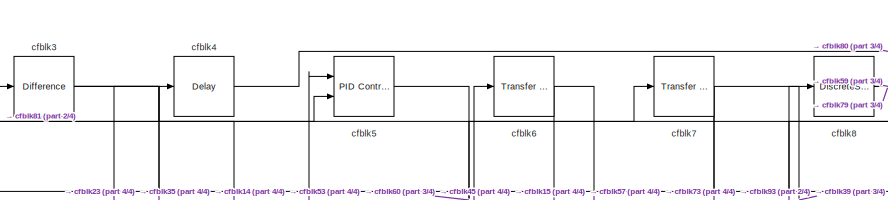
[diagram: root canvas - part 1/4, top center region]
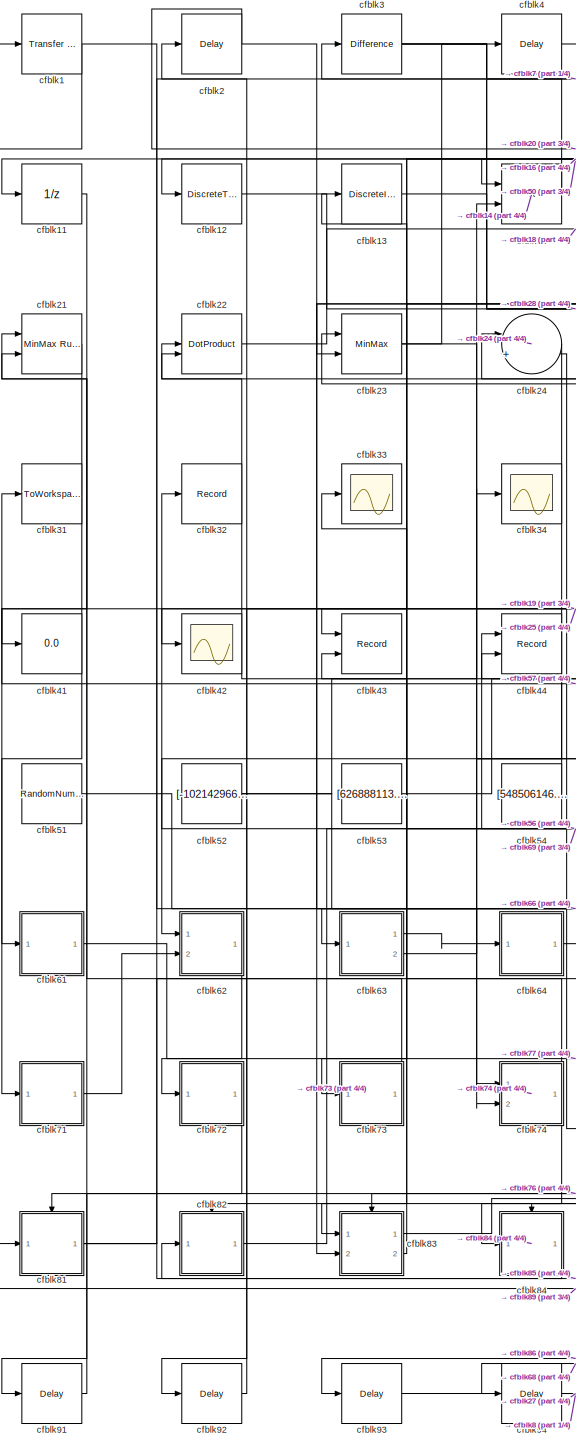
[diagram: root canvas - part 2/4, left side, full height]
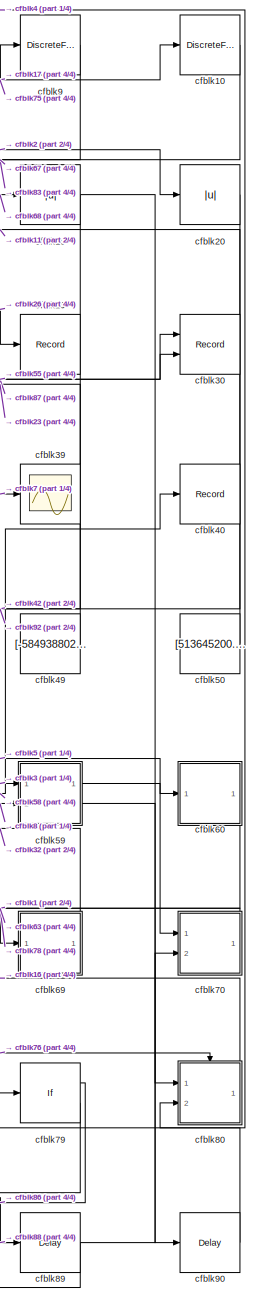
[diagram: root canvas - part 3/4, right side, full height]
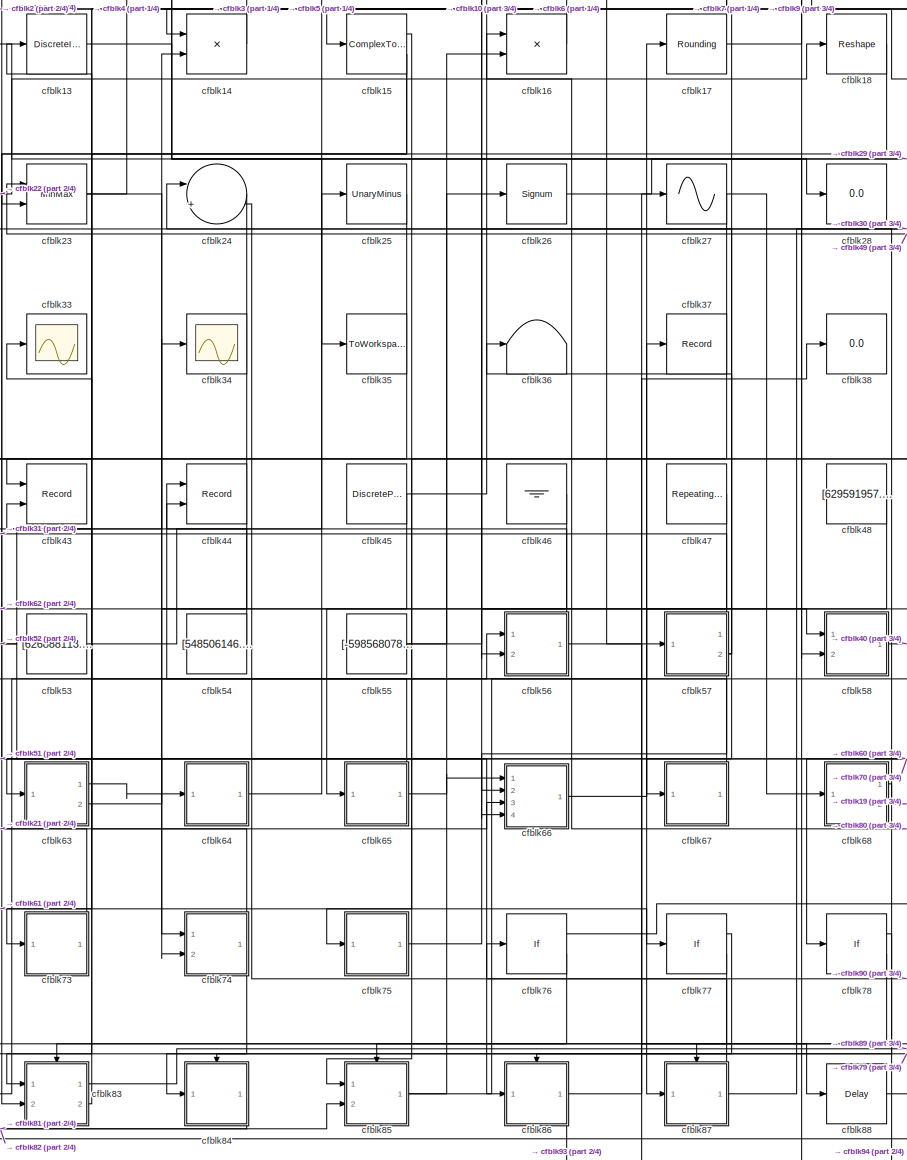
[diagram: root canvas - part 4/4, center side, full height]
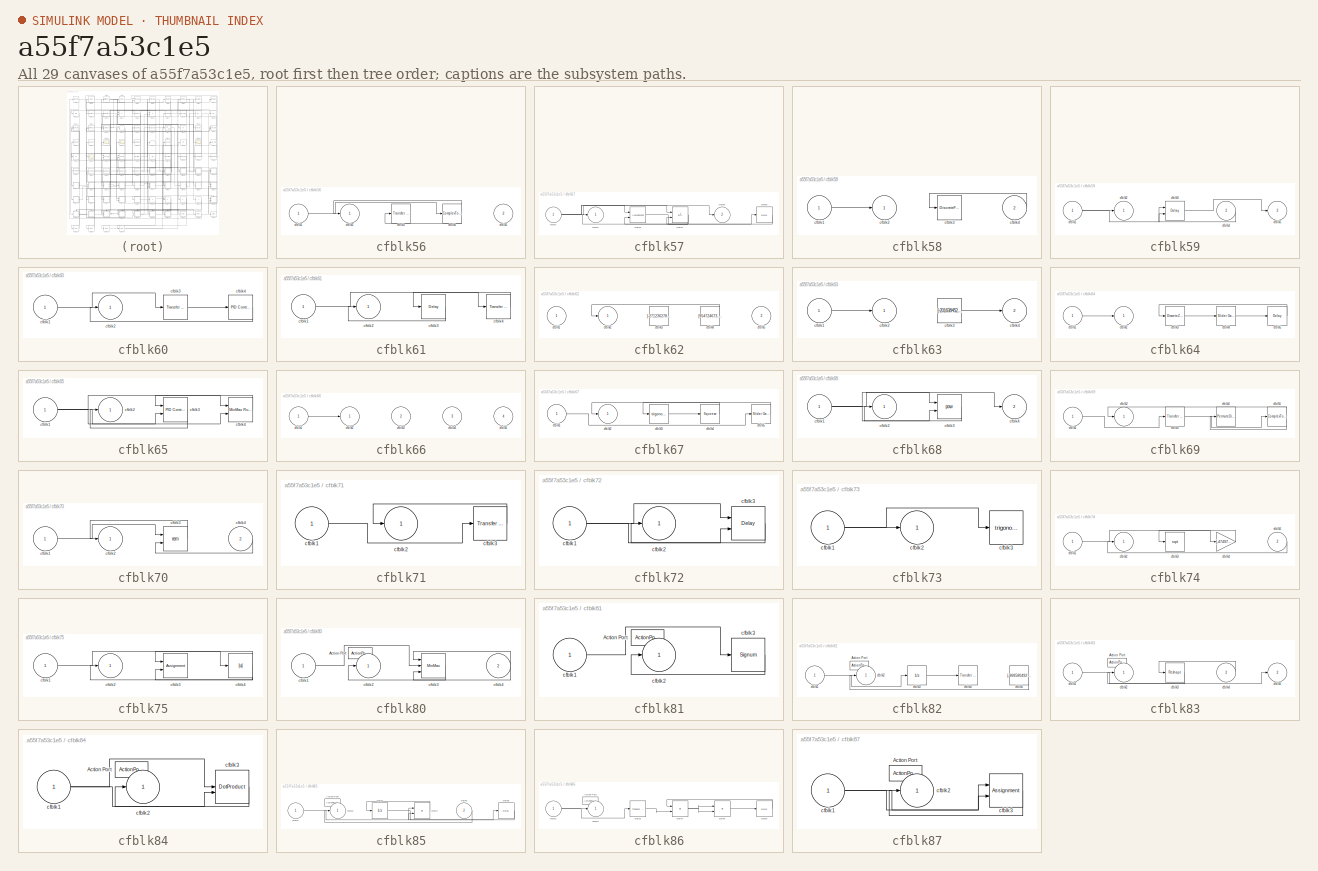
[diagram: thumbnail index - all 29 canvases of the model, root first then tree order]
MODEL slx_a55f7a53c1e5
KIND model
CONFIG AbsTol = auto
CONFIG EnableMultiTasking = off
CONFIG FixedStep = auto
CONFIG MaxStep = auto
CONFIG MinStep = auto
CONFIG RelTol = 1e-3
CONFIG SampleTimeConstraint = Unconstrained
CONFIG SolverName = VariableStepAuto
CONFIG StartTime = 0.0
CONFIG StopTime = 10.0
BLOCK [Reference] cfblk1  REF=simulink/Discrete/Transfer Fcn
Real Zero
  Ports = [1, 1]
  SourceBlock = simulink/Discrete/Transfer Fcn\nReal Zero
  SourceProductBaseCode = SL
  SourceType = Transfer Fcn Real Zero
BLOCK [DiscreteFir] cfblk10
  InputPortMap = u0
  OutputPortMap = o0
  Ports = [1, 1]
  SampleTime = 1
BLOCK [UnitDelay] cfblk11
  HasFrameUpgradeWarning = on
BLOCK [DiscreteTransferFcn] cfblk12
  InputPortMap = u0
  Ports = [1, 1]
  SampleTime = 1
BLOCK [DiscreteIntegrator] cfblk13
  ICPrevOutput = DiscIntNeverNeededParam
  ICPrevScaledInput = DiscIntNeverNeededParam
  InitialConditionSetting = Auto
  Ports = [1, 1]
BLOCK [Product] cfblk14
  Inputs = **
  Ports = [2, 1]
BLOCK [ComplexToMagnitudeAngle] cfblk15
  Ports = [1, 2]
BLOCK [Product] cfblk16
  Ports = [2, 1]
BLOCK [Rounding] cfblk17
BLOCK [Reshape] cfblk18
  Ports = [1, 1]
BLOCK [Abs] cfblk19
  SaturateOnIntegerOverflow = off
BLOCK [Delay] cfblk2
  InputPortMap = u0
  Ports = [1, 1]
  SampleTime = 1
BLOCK [Abs] cfblk20
  SaturateOnIntegerOverflow = off
BLOCK [Reference] cfblk21  REF=simulink/Math
Operations/MinMax
Running
Resettable
  Ports = [2, 1]
  SourceBlock = simulink/Math\nOperations/MinMax\nRunning\nResettable
  SourceProductBaseCode = SL
  SourceType = MinMax Running Resettable
BLOCK [DotProduct] cfblk22
  OutDataTypeStr = Inherit: Inherit via internal rule
BLOCK [MinMax] cfblk23
  Inputs = 2
  Ports = [2, 1]
BLOCK [Sum] cfblk24
  Inputs = |++
  Ports = [2, 1]
BLOCK [UnaryMinus] cfblk25
BLOCK [Signum] cfblk26
BLOCK [Sin] cfblk27
  Ports = [1, 1]
  SampleTime = 0
  TimeSource = Use external signal
BLOCK [Display] cfblk28
  Decimation = 1
  Ports = [1]
BLOCK [Record] cfblk29
  FileSettingsInternal = {"entries":[{"content":{"excelSettings":{"content":{},"type":"Streamout.ExcelSettings"}},"type":"Streamout.FileSettingStorage","uuid":"2b0b6815-d365-4954-8dd6-cb2e8cf74314"}],"packageUris":["http://schema.mathworks.com/mf0/streamout_blocks/R2020a"],"version":"1.0"}
  Ports = [1]
  SignalsInternal = {"entries":[{"content":{"signals":[{"content":{"blockPath":["sampleModel291/cfblk29"],"channel":[],"dimensions":[1],"domain":"sampleModel291/cfblk29","lineColor":"#edb120","plots":[1],"port":1,"sid":[""],"signalID":12456,"signalName":"cfblk26"},"type":"RecordBlkView.Signal","uuid":"788e08af-b9e6-414c-a560-80c9ba5d0819"}]},"type":"RecordBlkView.InputSignals","uuid":"3e41c427-b0fd-42bd-a14a-d0577fb3...<+98ch>
  VisualizationBindings = {"sparklinesplugin":{"info":[{"bindingParametersList":[],"subplotID":1}]}}
BLOCK [Reference] cfblk3  REF=simulink/Discrete/Difference
  Ports = [1, 1]
  SourceBlock = simulink/Discrete/Difference
  SourceProductBaseCode = SL
  SourceType = Difference
BLOCK [Record] cfblk30
  CompatibilityTag = XY
  FileSettingsInternal = {"entries":[{"content":{"excelSettings":{"content":{},"type":"Streamout.ExcelSettings"}},"type":"Streamout.FileSettingStorage","uuid":"5635bea9-fca3-4bb6-9632-28c56633b247"}],"packageUris":["http://schema.mathworks.com/mf0/streamout_blocks/R2020a"],"version":"1.0"}
  Layout = [1 1]
  Ports = [2]
  SignalsInternal = {"entries":[{"content":{"signals":[{"content":{"blockPath":["sampleModel291/cfblk30"],"channel":[],"dimensions":[1],"domain":"sampleModel291/cfblk30","lineColor":"#a2142f","plots":[1],"port":1,"sid":[""],"signalID":12460,"signalName":"cfblk87"},"type":"RecordBlkView.Signal","uuid":"f6ba7891-6f58-490e-8c31-e94127d30383"},{"content":{"blockPath":["sampleModel291/cfblk30"],"channel":[],"dimensions":[...<+385ch>
  VisualizationBindings = {"xyplotplugin":{"info":[{"series":[{"bindingParametersList":[{"parameter":"X-Axis","signalID":12460,"signalName":"cfblk87"},{"parameter":"Y-Axis","signalID":12464,"signalName":"cfblk55"}],"seriesID":59280}],"subplotID":1}]}}
BLOCK [ToWorkspace] cfblk31
  FixptAsFi = on
  MaxDataPoints = inf
  Ports = [1]
  SampleTime = -1
  SaveFormat = Timeseries
  VariableName = mzxfqgi
BLOCK [Record] cfblk32
  FileSettingsInternal = {"entries":[{"content":{"excelSettings":{"content":{},"type":"Streamout.ExcelSettings"}},"type":"Streamout.FileSettingStorage","uuid":"60596596-cd23-4a4b-82c4-f6842354ffef"}],"packageUris":["http://schema.mathworks.com/mf0/streamout_blocks/R2020a"],"version":"1.0"}
  Ports = [1]
  SignalsInternal = {"entries":[{"content":{"signals":[{"content":{"blockPath":["sampleModel291/cfblk32"],"channel":[],"dimensions":[1],"domain":"sampleModel291/cfblk32","lineColor":"#4dbeee","plots":[1],"port":1,"sid":[""],"signalID":12468,"signalName":"cfblk69"},"type":"RecordBlkView.Signal","uuid":"650ce02e-d49f-4bcf-a60e-c9fb45e201ce"}]},"type":"RecordBlkView.InputSignals","uuid":"14e7f9b7-81f6-4e45-abef-a96e68b3...<+98ch>
  VisualizationBindings = {"sparklinesplugin":{"info":[{"bindingParametersList":[],"subplotID":1}]}}
BLOCK [Scope] cfblk33
  Floating = off
  NumInputPorts = 1
  Ports = [1]
BLOCK [Scope] cfblk34
  Floating = off
  NumInputPorts = 1
  Ports = [1]
BLOCK [ToWorkspace] cfblk35
  FixptAsFi = on
  MaxDataPoints = inf
  Ports = [1]
  SampleTime = -1
  SaveFormat = Timeseries
  VariableName = jkqbuzk
BLOCK [Terminator] cfblk36
BLOCK [Record] cfblk37
  FileSettingsInternal = {"entries":[{"content":{"excelSettings":{"content":{},"type":"Streamout.ExcelSettings"}},"type":"Streamout.FileSettingStorage","uuid":"270472a9-c15e-4337-86cb-d1870147eddd"}],"packageUris":["http://schema.mathworks.com/mf0/streamout_blocks/R2020a"],"version":"1.0"}
  Ports = [1]
  SignalsInternal = {"entries":[{"content":{"signals":[{"content":{"blockPath":["sampleModel291/cfblk37"],"channel":[],"dimensions":[1],"domain":"sampleModel291/cfblk37","lineColor":"#a2142f","plots":[1],"port":1,"sid":[""],"signalID":12472,"signalName":"cfblk66"},"type":"RecordBlkView.Signal","uuid":"8edad1df-9d97-4163-a96f-1843b3050bc3"}]},"type":"RecordBlkView.InputSignals","uuid":"f9057b6f-5984-4fda-84d3-36f6257a...<+98ch>
  VisualizationBindings = {"sparklinesplugin":{"info":[{"bindingParametersList":[],"subplotID":1}]}}
BLOCK [Display] cfblk38
  Decimation = 1
  Ports = [1]
BLOCK [Scope] cfblk39
  Floating = off
  NumInputPorts = 1
  Ports = [1]
BLOCK [Delay] cfblk4
  InputPortMap = u0
  Ports = [1, 1]
  SampleTime = 1
BLOCK [Record] cfblk40
  FileSettingsInternal = {"entries":[{"content":{"excelSettings":{"content":{},"type":"Streamout.ExcelSettings"}},"type":"Streamout.FileSettingStorage","uuid":"e3efeabe-4dc1-445f-9362-73d41ad3b046"}],"packageUris":["http://schema.mathworks.com/mf0/streamout_blocks/R2020a"],"version":"1.0"}
  Ports = [1]
  SignalsInternal = {"entries":[{"content":{"signals":[{"content":{"blockPath":["sampleModel291/cfblk40"],"channel":[],"dimensions":[1],"domain":"sampleModel291/cfblk40","lineColor":"#139fff","plots":[1],"port":1,"sid":[""],"signalID":12476,"signalName":"cfblk58"},"type":"RecordBlkView.Signal","uuid":"9cd40f56-8516-48ae-bdeb-aa173b96d6b5"}]},"type":"RecordBlkView.InputSignals","uuid":"edb59d7e-1718-46a5-85a3-ead406b7...<+98ch>
  VisualizationBindings = {"sparklinesplugin":{"info":[{"bindingParametersList":[],"subplotID":1}]}}
BLOCK [Display] cfblk41
  Decimation = 1
  Ports = [1]
BLOCK [Scope] cfblk42
  Floating = off
  NumInputPorts = 1
  Ports = [1]
BLOCK [Record] cfblk43
  CompatibilityTag = XY
  FileSettingsInternal = {"entries":[{"content":{"excelSettings":{"content":{},"type":"Streamout.ExcelSettings"}},"type":"Streamout.FileSettingStorage","uuid":"b99e1a35-57bf-4256-9eb8-cedfd4ac4627"}],"packageUris":["http://schema.mathworks.com/mf0/streamout_blocks/R2020a"],"version":"1.0"}
  Layout = [1 1]
  Ports = [2]
  SignalsInternal = {"entries":[{"content":{"signals":[{"content":{"blockPath":["sampleModel291/cfblk43"],"channel":[],"dimensions":[1],"domain":"sampleModel291/cfblk43","lineColor":"#a2142f","plots":[1],"port":1,"sid":[""],"signalID":12480,"signalName":"cfblk18"},"type":"RecordBlkView.Signal","uuid":"0c827c99-4b19-44af-998e-2d70f7f43936"},{"content":{"blockPath":["sampleModel291/cfblk43"],"channel":[],"dimensions":[...<+385ch>
  VisualizationBindings = {"xyplotplugin":{"info":[{"series":[{"bindingParametersList":[{"parameter":"X-Axis","signalID":12480,"signalName":"cfblk18"},{"parameter":"Y-Axis","signalID":12484,"signalName":"cfblk74"}],"seriesID":65002}],"subplotID":1}]}}
BLOCK [Record] cfblk44
  CompatibilityTag = XY
  FileSettingsInternal = {"entries":[{"content":{"excelSettings":{"content":{},"type":"Streamout.ExcelSettings"}},"type":"Streamout.FileSettingStorage","uuid":"dd3e8336-4d39-4557-9814-8ffac90a22b5"}],"packageUris":["http://schema.mathworks.com/mf0/streamout_blocks/R2020a"],"version":"1.0"}
  Layout = [1 1]
  Ports = [2]
  SignalsInternal = {"entries":[{"content":{"signals":[{"content":{"blockPath":["sampleModel291/cfblk44"],"channel":[],"dimensions":[1],"domain":"sampleModel291/cfblk44","lineColor":"#a2142f","plots":[1],"port":1,"sid":[""],"signalID":12488,"signalName":"cfblk54"},"type":"RecordBlkView.Signal","uuid":"f76f9e45-b488-469e-872e-e77342bc62c3"},{"content":{"blockPath":["sampleModel291/cfblk44"],"channel":[],"dimensions":[...<+385ch>
  VisualizationBindings = {"xyplotplugin":{"info":[{"series":[{"bindingParametersList":[{"parameter":"X-Axis","signalID":12488,"signalName":"cfblk54"},{"parameter":"Y-Axis","signalID":12492,"signalName":"cfblk67"}],"seriesID":5305}],"subplotID":1}]}}
BLOCK [DiscretePulseGenerator] cfblk45
  Amplitude = [-963080004.086267]
  Period = [93072844.377323]
  PhaseDelay = [6.000000]
  Ports = [0, 1]
  PulseType = Time based
  PulseWidth = 5
BLOCK [Ground] cfblk46
BLOCK [Reference] cfblk47  REF=simulink/Sources/Repeating
Sequence
  Ports = [0, 1]
  SourceBlock = simulink/Sources/Repeating\nSequence
  SourceProductBaseCode = SL
  SourceType = Repeating table
BLOCK [Constant] cfblk48
  SampleTime = 1
  Value = [629591957.612777]
BLOCK [Constant] cfblk49
  SampleTime = 1
  Value = [-584938802.515284]
BLOCK [Reference] cfblk5  REF=slpidlib/PID Controller (2DOF)
  Ports = [2, 1]
  SourceBlock = slpidlib/PID Controller (2DOF)
  SourceProductBaseCode = SL
  SourceType = PID 2dof
BLOCK [Constant] cfblk50
  SampleTime = 1
  Value = [513645200.187162]
BLOCK [RandomNumber] cfblk51
  Mean = [34863.969112]
  SampleTime = 0.1
  Seed = [176318592.000000]
  Variance = [79855.509002]
BLOCK [Constant] cfblk52
  SampleTime = 1
  Value = [-102142966.270296]
BLOCK [Constant] cfblk53
  SampleTime = 1
  Value = [626888113.337072]
BLOCK [Constant] cfblk54
  SampleTime = 1
  Value = [548506146.640336]
BLOCK [Constant] cfblk55
  SampleTime = 1
  Value = [-598568078.463545]
BLOCK [SubSystem] cfblk56
  Ports = [2, 1]
  RequestExecContextInheritance = off
BLOCK [Inport] cfblk56/cfblk1
BLOCK [Outport] cfblk56/cfblk2
BLOCK [Reference] cfblk56/cfblk3  REF=simulink/Discrete/Transfer Fcn
First Order
  Ports = [1, 1]
  SourceBlock = simulink/Discrete/Transfer Fcn\nFirst Order
  SourceProductBaseCode = SL
  SourceType = First Order Transfer Fcn
BLOCK [ComplexToMagnitudeAngle] cfblk56/cfblk4
  Ports = [1, 2]
BLOCK [Inport] cfblk56/cfblk5
  Port = 2
BLOCK [SubSystem] cfblk57
  Ports = [1, 2]
  RequestExecContextInheritance = off
BLOCK [Inport] cfblk57/cfblk1
BLOCK [Outport] cfblk57/cfblk2
BLOCK [Assignment] cfblk57/cfblk3
  DiagnosticForDimensions = Warning
  IndexOptions = Index vector (dialog)
  Indices = 1
  OutputSizes = 1
  Ports = [2, 1]
BLOCK [Sum] cfblk57/cfblk4
  IconShape = rectangular
  Inputs = -+
  Ports = [2, 1]
BLOCK [Outport] cfblk57/cfblk5
  Port = 2
BLOCK [Delay] cfblk57/cfblk6
  InputPortMap = u0
  Ports = [1, 1]
  SampleTime = 1
BLOCK [SubSystem] cfblk58
  Ports = [2, 1]
  RequestExecContextInheritance = off
BLOCK [Inport] cfblk58/cfblk1
BLOCK [Outport] cfblk58/cfblk2
BLOCK [DiscreteFir] cfblk58/cfblk3
  InputPortMap = u0
  OutputPortMap = o0
  Ports = [1, 1]
  SampleTime = 1
BLOCK [Inport] cfblk58/cfblk4
  Port = 2
BLOCK [SubSystem] cfblk59
  Ports = [2, 2]
  RequestExecContextInheritance = off
BLOCK [Inport] cfblk59/cfblk1
BLOCK [Outport] cfblk59/cfblk2
BLOCK [Delay] cfblk59/cfblk3
  DelayLengthSource = Input port
  InputPortMap = u0,p1
  Ports = [2, 1]
  SampleTime = 1
BLOCK [Inport] cfblk59/cfblk4
  Port = 2
BLOCK [Outport] cfblk59/cfblk5
  Port = 2
BLOCK [Reference] cfblk6  REF=simulink/Discrete/Transfer Fcn
First Order
  Ports = [1, 1]
  SourceBlock = simulink/Discrete/Transfer Fcn\nFirst Order
  SourceProductBaseCode = SL
  SourceType = First Order Transfer Fcn
BLOCK [SubSystem] cfblk60
  Ports = [1, 1]
  RequestExecContextInheritance = off
BLOCK [Inport] cfblk60/cfblk1
BLOCK [Outport] cfblk60/cfblk2
BLOCK [Reference] cfblk60/cfblk3  REF=simulink/Discrete/Transfer Fcn
First Order
  Ports = [1, 1]
  SourceBlock = simulink/Discrete/Transfer Fcn\nFirst Order
  SourceProductBaseCode = SL
  SourceType = First Order Transfer Fcn
BLOCK [Reference] cfblk60/cfblk4  REF=slpidlib/PID Controller
  Ports = [1, 1]
  SourceBlock = slpidlib/PID Controller
  SourceProductBaseCode = SL
  SourceType = PID 1dof
BLOCK [SubSystem] cfblk61
  Ports = [1, 1]
  RequestExecContextInheritance = off
BLOCK [Inport] cfblk61/cfblk1
BLOCK [Outport] cfblk61/cfblk2
BLOCK [Delay] cfblk61/cfblk3
  InputPortMap = u0
  Ports = [1, 1]
  SampleTime = 1
BLOCK [Reference] cfblk61/cfblk4  REF=simulink/Discrete/Transfer Fcn
Real Zero
  Ports = [1, 1]
  SourceBlock = simulink/Discrete/Transfer Fcn\nReal Zero
  SourceProductBaseCode = SL
  SourceType = Transfer Fcn Real Zero
BLOCK [SubSystem] cfblk62
  Ports = [2, 1]
  RequestExecContextInheritance = off
BLOCK [Inport] cfblk62/cfblk1
BLOCK [Outport] cfblk62/cfblk2
BLOCK [Constant] cfblk62/cfblk3
  SampleTime = 1
  Value = [-271236278.663390]
BLOCK [Constant] cfblk62/cfblk4
  SampleTime = 1
  Value = [954724673.344416]
BLOCK [Inport] cfblk62/cfblk5
  Port = 2
BLOCK [SubSystem] cfblk63
  Ports = [1, 2]
  RequestExecContextInheritance = off
BLOCK [Inport] cfblk63/cfblk1
BLOCK [Outport] cfblk63/cfblk2
BLOCK [Constant] cfblk63/cfblk3
  SampleTime = 1
  Value = [-201638452.809249]
BLOCK [Outport] cfblk63/cfblk4
  Port = 2
BLOCK [SubSystem] cfblk64
  Ports = [1, 1]
  RequestExecContextInheritance = off
BLOCK [Inport] cfblk64/cfblk1
BLOCK [Outport] cfblk64/cfblk2
BLOCK [DiscreteZeroPole] cfblk64/cfblk3
  Gain = 1
  Poles = [0 0.5]
BLOCK [Reference] cfblk64/cfblk4  REF=simulink/Math
Operations/Slider
Gain
  Ports = [1, 1]
  SourceBlock = simulink/Math\nOperations/Slider\nGain
  SourceProductBaseCode = SL
  SourceType = Slider Gain
BLOCK [Delay] cfblk64/cfblk5
  InputPortMap = u0
  Ports = [1, 1]
  SampleTime = 1
BLOCK [SubSystem] cfblk65
  Ports = [1, 1]
  RequestExecContextInheritance = off
BLOCK [Inport] cfblk65/cfblk1
BLOCK [Outport] cfblk65/cfblk2
BLOCK [Reference] cfblk65/cfblk3  REF=slpidlib/PID Controller (2DOF)
  Ports = [2, 1]
  SourceBlock = slpidlib/PID Controller (2DOF)
  SourceProductBaseCode = SL
  SourceType = PID 2dof
BLOCK [Reference] cfblk65/cfblk4  REF=simulink/Math
Operations/MinMax
Running
Resettable
  Ports = [2, 1]
  SourceBlock = simulink/Math\nOperations/MinMax\nRunning\nResettable
  SourceProductBaseCode = SL
  SourceType = MinMax Running Resettable
BLOCK [SubSystem] cfblk66
  Ports = [4, 1]
  RequestExecContextInheritance = off
BLOCK [Inport] cfblk66/cfblk1
BLOCK [Outport] cfblk66/cfblk2
BLOCK [Inport] cfblk66/cfblk3
  Port = 2
BLOCK [Inport] cfblk66/cfblk4
  Port = 3
BLOCK [Inport] cfblk66/cfblk5
  Port = 4
BLOCK [SubSystem] cfblk67
  Ports = [1, 1]
  RequestExecContextInheritance = off
BLOCK [Inport] cfblk67/cfblk1
BLOCK [Outport] cfblk67/cfblk2
BLOCK [Trigonometry] cfblk67/cfblk3
  Ports = [1, 1]
BLOCK [Squeeze] cfblk67/cfblk4
BLOCK [Reference] cfblk67/cfblk5  REF=simulink/Math
Operations/Slider
Gain
  Ports = [1, 1]
  SourceBlock = simulink/Math\nOperations/Slider\nGain
  SourceProductBaseCode = SL
  SourceType = Slider Gain
BLOCK [SubSystem] cfblk68
  Ports = [1, 2]
  RequestExecContextInheritance = off
BLOCK [Inport] cfblk68/cfblk1
BLOCK [Outport] cfblk68/cfblk2
BLOCK [Math] cfblk68/cfblk3
  Operator = pow
  Ports = [2, 1]
BLOCK [Outport] cfblk68/cfblk4
  Port = 2
BLOCK [SubSystem] cfblk69
  Ports = [1, 1]
  RequestExecContextInheritance = off
BLOCK [Inport] cfblk69/cfblk1
BLOCK [Outport] cfblk69/cfblk2
BLOCK [Reference] cfblk69/cfblk3  REF=simulink/Discrete/Transfer Fcn
First Order
  Ports = [1, 1]
  SourceBlock = simulink/Discrete/Transfer Fcn\nFirst Order
  SourceProductBaseCode = SL
  SourceType = First Order Transfer Fcn
BLOCK [PermuteDimensions] cfblk69/cfblk4
BLOCK [ComplexToMagnitudeAngle] cfblk69/cfblk5
  Ports = [1, 2]
BLOCK [Reference] cfblk7  REF=simulink/Discrete/Transfer Fcn
Real Zero
  Ports = [1, 1]
  SourceBlock = simulink/Discrete/Transfer Fcn\nReal Zero
  SourceProductBaseCode = SL
  SourceType = Transfer Fcn Real Zero
BLOCK [SubSystem] cfblk70
  Ports = [2, 1]
  RequestExecContextInheritance = off
BLOCK [Inport] cfblk70/cfblk1
BLOCK [Outport] cfblk70/cfblk2
BLOCK [Math] cfblk70/cfblk3
  Operator = rem
  Ports = [2, 1]
BLOCK [Inport] cfblk70/cfblk4
  Port = 2
BLOCK [SubSystem] cfblk71
  Ports = [1, 1]
  RequestExecContextInheritance = off
BLOCK [Inport] cfblk71/cfblk1
BLOCK [Outport] cfblk71/cfblk2
BLOCK [Reference] cfblk71/cfblk3  REF=simulink/Discrete/Transfer Fcn
First Order
  Ports = [1, 1]
  SourceBlock = simulink/Discrete/Transfer Fcn\nFirst Order
  SourceProductBaseCode = SL
  SourceType = First Order Transfer Fcn
BLOCK [SubSystem] cfblk72
  Ports = [1, 1]
  RequestExecContextInheritance = off
BLOCK [Inport] cfblk72/cfblk1
BLOCK [Outport] cfblk72/cfblk2
BLOCK [Delay] cfblk72/cfblk3
  DelayLengthSource = Input port
  InputPortMap = u0,p1
  Ports = [2, 1]
  SampleTime = 1
BLOCK [SubSystem] cfblk73
  Ports = [1, 1]
  RequestExecContextInheritance = off
BLOCK [Inport] cfblk73/cfblk1
BLOCK [Outport] cfblk73/cfblk2
BLOCK [Trigonometry] cfblk73/cfblk3
  Ports = [1, 1]
BLOCK [SubSystem] cfblk74
  Ports = [2, 1]
  RequestExecContextInheritance = off
BLOCK [Inport] cfblk74/cfblk1
BLOCK [Outport] cfblk74/cfblk2
BLOCK [Sqrt] cfblk74/cfblk3
BLOCK [Gain] cfblk74/cfblk4
  Gain = [-474978337.652932]
BLOCK [Inport] cfblk74/cfblk5
  Port = 2
BLOCK [SubSystem] cfblk75
  Ports = [1, 1]
  RequestExecContextInheritance = off
BLOCK [Inport] cfblk75/cfblk1
BLOCK [Outport] cfblk75/cfblk2
BLOCK [Assignment] cfblk75/cfblk3
  DiagnosticForDimensions = Warning
  IndexOptions = Index vector (dialog)
  Indices = 1
  OutputSizes = 1
  Ports = [2, 1]
BLOCK [Abs] cfblk75/cfblk4
  SaturateOnIntegerOverflow = off
BLOCK [If] cfblk76
  IfExpression = u1 >= 0
  Ports = [1, 2]
  SampleTime = 1
BLOCK [If] cfblk77
  IfExpression = u1 >= 0
  Ports = [1, 2]
  SampleTime = 1
BLOCK [If] cfblk78
  IfExpression = u1 >= 0
  Ports = [1, 2]
  SampleTime = 1
BLOCK [If] cfblk79
  IfExpression = u1 >= 0
  Ports = [1, 2]
  SampleTime = 1
BLOCK [DiscreteStateSpace] cfblk8
BLOCK [SubSystem] cfblk80
  Ports = [2, 1, 0, 0, 0, 0, 0, 1]
  RequestExecContextInheritance = off
  TreatAsAtomicUnit = on
BLOCK [ActionPort] cfblk80/Action Port
  ActionPortLabel = if(u1 >= 0)
BLOCK [Inport] cfblk80/cfblk1
BLOCK [Outport] cfblk80/cfblk2
BLOCK [MinMax] cfblk80/cfblk3
  Function = max
  Inputs = 3
  Ports = [3, 1]
BLOCK [Inport] cfblk80/cfblk4
  Port = 2
BLOCK [SubSystem] cfblk81
  Ports = [1, 1, 0, 0, 0, 0, 0, 1]
  RequestExecContextInheritance = off
  TreatAsAtomicUnit = on
BLOCK [ActionPort] cfblk81/Action Port
  ActionPortLabel = else
BLOCK [Inport] cfblk81/cfblk1
BLOCK [Outport] cfblk81/cfblk2
BLOCK [Signum] cfblk81/cfblk3
BLOCK [SubSystem] cfblk82
  Ports = [1, 1, 0, 0, 0, 0, 0, 1]
  RequestExecContextInheritance = off
  TreatAsAtomicUnit = on
BLOCK [ActionPort] cfblk82/Action Port
  ActionPortLabel = if(u1 >= 0)
BLOCK [Inport] cfblk82/cfblk1
BLOCK [Outport] cfblk82/cfblk2
BLOCK [UnitDelay] cfblk82/cfblk3
  HasFrameUpgradeWarning = on
  SampleTime = -1
BLOCK [Reference] cfblk82/cfblk4  REF=simulink/Discrete/Transfer Fcn
Real Zero
  Ports = [1, 1]
  SourceBlock = simulink/Discrete/Transfer Fcn\nReal Zero
  SourceProductBaseCode = SL
  SourceType = Transfer Fcn Real Zero
BLOCK [Constant] cfblk82/cfblk5
  SampleTime = 1
  Value = [-868580492.211933]
BLOCK [SubSystem] cfblk83
  Ports = [2, 2, 0, 0, 0, 0, 0, 1]
  RequestExecContextInheritance = off
  TreatAsAtomicUnit = on
BLOCK [ActionPort] cfblk83/Action Port
  ActionPortLabel = else
BLOCK [Inport] cfblk83/cfblk1
BLOCK [Outport] cfblk83/cfblk2
BLOCK [Reshape] cfblk83/cfblk3
  Ports = [1, 1]
BLOCK [Inport] cfblk83/cfblk4
  Port = 2
BLOCK [Outport] cfblk83/cfblk5
  Port = 2
BLOCK [SubSystem] cfblk84
  Ports = [1, 1, 0, 0, 0, 0, 0, 1]
  RequestExecContextInheritance = off
  TreatAsAtomicUnit = on
BLOCK [ActionPort] cfblk84/Action Port
  ActionPortLabel = if(u1 >= 0)
BLOCK [Inport] cfblk84/cfblk1
BLOCK [Outport] cfblk84/cfblk2
BLOCK [DotProduct] cfblk84/cfblk3
  OutDataTypeStr = Inherit: Inherit via internal rule
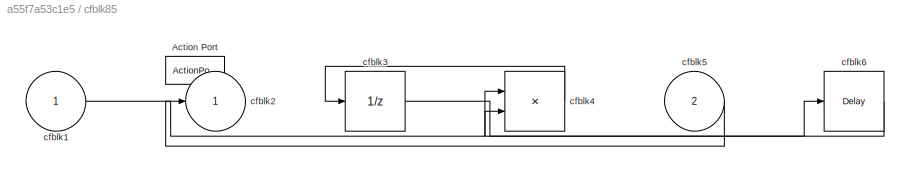
BLOCK [SubSystem] cfblk85
  Ports = [2, 1, 0, 0, 0, 0, 0, 1]
  RequestExecContextInheritance = off
  TreatAsAtomicUnit = on
BLOCK [ActionPort] cfblk85/Action Port
  ActionPortLabel = else
BLOCK [Inport] cfblk85/cfblk1
BLOCK [Outport] cfblk85/cfblk2
BLOCK [UnitDelay] cfblk85/cfblk3
  HasFrameUpgradeWarning = on
  SampleTime = -1
BLOCK [Product] cfblk85/cfblk4
  Inputs = **
  Ports = [2, 1]
BLOCK [Inport] cfblk85/cfblk5
  Port = 2
BLOCK [Delay] cfblk85/cfblk6
  InputPortMap = u0
  Ports = [1, 1]
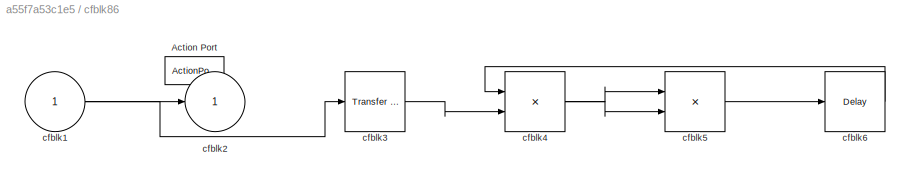
BLOCK [SubSystem] cfblk86
  Ports = [1, 1, 0, 0, 0, 0, 0, 1]
  RequestExecContextInheritance = off
  TreatAsAtomicUnit = on
BLOCK [ActionPort] cfblk86/Action Port
  ActionPortLabel = if(u1 >= 0)
BLOCK [Inport] cfblk86/cfblk1
BLOCK [Outport] cfblk86/cfblk2
BLOCK [Reference] cfblk86/cfblk3  REF=simulink/Discrete/Transfer Fcn
Real Zero
  Ports = [1, 1]
  SourceBlock = simulink/Discrete/Transfer Fcn\nReal Zero
  SourceProductBaseCode = SL
  SourceType = Transfer Fcn Real Zero
BLOCK [Product] cfblk86/cfblk4
  Inputs = **
  Ports = [2, 1]
BLOCK [Product] cfblk86/cfblk5
  Ports = [2, 1]
BLOCK [Delay] cfblk86/cfblk6
  InputPortMap = u0
  Ports = [1, 1]
BLOCK [SubSystem] cfblk87
  Ports = [1, 1, 0, 0, 0, 0, 0, 1]
  RequestExecContextInheritance = off
  TreatAsAtomicUnit = on
BLOCK [ActionPort] cfblk87/Action Port
  ActionPortLabel = else
BLOCK [Inport] cfblk87/cfblk1
BLOCK [Outport] cfblk87/cfblk2
BLOCK [Assignment] cfblk87/cfblk3
  DiagnosticForDimensions = Warning
  IndexOptions = Index vector (dialog)
  Indices = 1
  OutputSizes = 1
  Ports = [2, 1]
BLOCK [Delay] cfblk88
  InputPortMap = u0
  Ports = [1, 1]
  SampleTime = 1
BLOCK [Delay] cfblk89
  InputPortMap = u0
  Ports = [1, 1]
  SampleTime = 1
BLOCK [DiscreteFilter] cfblk9
  InputPortMap = u0
  Ports = [1, 1]
  SampleTime = 1
BLOCK [Delay] cfblk90
  InputPortMap = u0
  Ports = [1, 1]
  SampleTime = 1
BLOCK [Delay] cfblk91
  InputPortMap = u0
  Ports = [1, 1]
  SampleTime = 1
BLOCK [Delay] cfblk92
  InputPortMap = u0
  Ports = [1, 1]
  SampleTime = 1
BLOCK [Delay] cfblk93
  InputPortMap = u0
  Ports = [1, 1]
  SampleTime = 1
BLOCK [Delay] cfblk94
  InputPortMap = u0
  Ports = [1, 1]
  SampleTime = 1
LINE cfblk10:1 -> cfblk67:1
LINE cfblk11:1 -> cfblk41:1
LINE cfblk12:1 -> cfblk28:1
LINE cfblk13:1 -> cfblk58:2
LINE cfblk14:1 -> cfblk3:1
LINE cfblk15:1 -> cfblk85:1
NET cfblk15:2 -> cfblk23:2, cfblk83:2
LINE cfblk16:1 -> cfblk12:1
LINE cfblk17:1 -> cfblk9:1
LINE cfblk18:1 -> cfblk43:1
NET cfblk19:1 -> cfblk42:1, cfblk80:1
NET cfblk1:1 -> cfblk69:1, cfblk81:1
LINE cfblk20:1 -> cfblk92:1
LINE cfblk21:1 -> cfblk71:1
LINE cfblk22:1 -> cfblk18:1
NET cfblk23:1 -> cfblk4:1, cfblk58:1
LINE cfblk24:1 -> cfblk62:1
LINE cfblk25:1 -> cfblk61:1
LINE cfblk26:1 -> cfblk29:1
NET cfblk27:1 -> cfblk68:1, cfblk75:1
NET cfblk2:1 -> cfblk20:1, cfblk66:4
NET cfblk3:1 -> cfblk35:1, cfblk59:1, cfblk5:2
NET cfblk45:1 -> cfblk6:1, cfblk74:2
LINE cfblk46:1 -> cfblk65:1
LINE cfblk47:1 -> cfblk87:1
LINE cfblk48:1 -> cfblk56:2
LINE cfblk49:1 -> cfblk23:1
LINE cfblk4:1 -> cfblk80:2
LINE cfblk50:1 -> cfblk11:1
LINE cfblk51:1 -> cfblk86:1
NET cfblk52:1 -> cfblk14:2, cfblk74:1
LINE cfblk53:1 -> cfblk5:1
LINE cfblk54:1 -> cfblk44:1
NET cfblk55:1 -> cfblk26:1, cfblk30:2
LINE cfblk56/cfblk1:1 -> cfblk56/cfblk4:1
LINE cfblk56/cfblk4:1 -> cfblk56/cfblk2:1
LINE cfblk56/cfblk4:2 -> cfblk56/cfblk3:1
NET cfblk56:1 -> cfblk22:2, cfblk88:1
NET cfblk57/cfblk1:1 -> cfblk57/cfblk3:1, cfblk57/cfblk4:1, cfblk57/cfblk5:1
LINE cfblk57/cfblk3:1 -> cfblk57/cfblk6:1
NET cfblk57/cfblk4:1 -> cfblk57/cfblk2:1, cfblk57/cfblk3:2
LINE cfblk57/cfblk6:1 -> cfblk57/cfblk4:2
LINE cfblk57:1 -> cfblk31:1
NET cfblk57:2 -> cfblk22:1, cfblk36:1, cfblk66:2
LINE cfblk58/cfblk1:1 -> cfblk58/cfblk2:1
LINE cfblk58/cfblk4:1 -> cfblk58/cfblk3:1
LINE cfblk58:1 -> cfblk40:1
NET cfblk59/cfblk1:1 -> cfblk59/cfblk2:1, cfblk59/cfblk3:2
LINE cfblk59/cfblk3:1 -> cfblk59/cfblk5:1
LINE cfblk59/cfblk4:1 -> cfblk59/cfblk3:1
LINE cfblk59:1 -> cfblk70:1
LINE cfblk59:2 -> cfblk90:1
LINE cfblk5:1 -> cfblk60:1
LINE cfblk60/cfblk1:1 -> cfblk60/cfblk3:1
LINE cfblk60/cfblk3:1 -> cfblk60/cfblk4:1
LINE cfblk60/cfblk4:1 -> cfblk60/cfblk2:1
LINE cfblk60:1 -> cfblk78:1
LINE cfblk61/cfblk1:1 -> cfblk61/cfblk4:1
LINE cfblk61/cfblk3:1 -> cfblk61/cfblk2:1
LINE cfblk61/cfblk4:1 -> cfblk61/cfblk3:1
LINE cfblk61:1 -> cfblk77:1
LINE cfblk62/cfblk4:1 -> cfblk62/cfblk2:1
LINE cfblk62:1 -> cfblk72:1
LINE cfblk63/cfblk1:1 -> cfblk63/cfblk2:1
LINE cfblk63/cfblk3:1 -> cfblk63/cfblk4:1
LINE cfblk63:1 -> cfblk64:1
LINE cfblk63:2 -> cfblk34:1
LINE cfblk64/cfblk1:1 -> cfblk64/cfblk2:1
LINE cfblk64/cfblk3:1 -> cfblk64/cfblk4:1
LINE cfblk64/cfblk4:1 -> cfblk64/cfblk5:1
LINE cfblk64/cfblk5:1 -> cfblk64/cfblk3:1
LINE cfblk64:1 -> cfblk25:1
NET cfblk65/cfblk1:1 -> cfblk65/cfblk3:2, cfblk65/cfblk4:1, cfblk65/cfblk4:2
LINE cfblk65/cfblk3:1 -> cfblk65/cfblk2:1
LINE cfblk65/cfblk4:1 -> cfblk65/cfblk3:1
NET cfblk65:1 -> cfblk33:1, cfblk66:1
LINE cfblk66/cfblk1:1 -> cfblk66/cfblk2:1
LINE cfblk66:1 -> cfblk37:1
LINE cfblk67/cfblk1:1 -> cfblk67/cfblk5:1
LINE cfblk67/cfblk3:1 -> cfblk67/cfblk4:1
LINE cfblk67/cfblk4:1 -> cfblk67/cfblk2:1
LINE cfblk67/cfblk5:1 -> cfblk67/cfblk3:1
LINE cfblk67:1 -> cfblk44:2
NET cfblk68/cfblk1:1 -> cfblk68/cfblk3:1, cfblk68/cfblk3:2, cfblk68/cfblk4:1
LINE cfblk68/cfblk3:1 -> cfblk68/cfblk2:1
LINE cfblk68:1 -> cfblk94:1
NET cfblk68:2 -> cfblk19:1, cfblk24:1
LINE cfblk69/cfblk1:1 -> cfblk69/cfblk3:1
LINE cfblk69/cfblk3:1 -> cfblk69/cfblk5:1
LINE cfblk69/cfblk5:1 -> cfblk69/cfblk2:1
LINE cfblk69/cfblk5:2 -> cfblk69/cfblk4:1
LINE cfblk69:1 -> cfblk32:1
NET cfblk6:1 -> cfblk15:1, cfblk57:1
LINE cfblk70/cfblk1:1 -> cfblk70/cfblk3:1
LINE cfblk70/cfblk3:1 -> cfblk70/cfblk2:1
LINE cfblk70/cfblk4:1 -> cfblk70/cfblk3:2
LINE cfblk70:1 -> cfblk63:1
LINE cfblk71/cfblk1:1 -> cfblk71/cfblk3:1
LINE cfblk71/cfblk3:1 -> cfblk71/cfblk2:1
LINE cfblk71:1 -> cfblk62:2
NET cfblk72/cfblk1:1 -> cfblk72/cfblk3:1, cfblk72/cfblk3:2
LINE cfblk72/cfblk3:1 -> cfblk72/cfblk2:1
LINE cfblk72:1 -> cfblk91:1
NET cfblk73/cfblk1:1 -> cfblk73/cfblk2:1, cfblk73/cfblk3:1
LINE cfblk73:1 -> cfblk21:1
LINE cfblk74/cfblk1:1 -> cfblk74/cfblk4:1
LINE cfblk74/cfblk4:1 -> cfblk74/cfblk3:1
LINE cfblk74/cfblk5:1 -> cfblk74/cfblk2:1
NET cfblk74:1 -> cfblk43:2, cfblk84:1
LINE cfblk75/cfblk1:1 -> cfblk75/cfblk4:1
NET cfblk75/cfblk4:1 -> cfblk75/cfblk2:1, cfblk75/cfblk3:1, cfblk75/cfblk3:2
LINE cfblk75:1 -> cfblk10:1
LINE cfblk76:1 -> cfblk80:ifaction
LINE cfblk76:2 -> cfblk81:ifaction
LINE cfblk77:1 -> cfblk82:ifaction
LINE cfblk77:2 -> cfblk83:ifaction
LINE cfblk78:1 -> cfblk84:ifaction
LINE cfblk78:2 -> cfblk85:ifaction
LINE cfblk79:1 -> cfblk86:ifaction
LINE cfblk79:2 -> cfblk87:ifaction
NET cfblk7:1 -> cfblk14:1, cfblk39:1, cfblk73:1
LINE cfblk80/cfblk1:1 -> cfblk80/cfblk3:2
LINE cfblk80/cfblk3:1 -> cfblk80/cfblk2:1
NET cfblk80/cfblk4:1 -> cfblk80/cfblk3:1, cfblk80/cfblk3:3
LINE cfblk80:1 -> cfblk16:1
LINE cfblk81/cfblk1:1 -> cfblk81/cfblk3:1
LINE cfblk81/cfblk3:1 -> cfblk81/cfblk2:1
NET cfblk81:1 -> cfblk66:3, cfblk7:1, cfblk85:2
LINE cfblk82/cfblk1:1 -> cfblk82/cfblk3:1
LINE cfblk82/cfblk3:1 -> cfblk82/cfblk4:1
LINE cfblk82/cfblk5:1 -> cfblk82/cfblk2:1
LINE cfblk82:1 -> cfblk56:1
LINE cfblk83/cfblk1:1 -> cfblk83/cfblk5:1
LINE cfblk83/cfblk3:1 -> cfblk83/cfblk2:1
LINE cfblk83/cfblk4:1 -> cfblk83/cfblk3:1
LINE cfblk83:1 -> cfblk89:1
LINE cfblk83:2 -> cfblk13:1
NET cfblk84/cfblk1:1 -> cfblk84/cfblk3:1, cfblk84/cfblk3:2
LINE cfblk84/cfblk3:1 -> cfblk84/cfblk2:1
LINE cfblk84:1 -> cfblk82:1
LINE cfblk85/cfblk1:1 -> cfblk85/cfblk4:1
LINE cfblk85/cfblk3:1 -> cfblk85/cfblk6:1
LINE cfblk85/cfblk4:1 -> cfblk85/cfblk3:1
LINE cfblk85/cfblk5:1 -> cfblk85/cfblk2:1
LINE cfblk85/cfblk6:1 -> cfblk85/cfblk4:2
NET cfblk85:1 -> cfblk16:2, cfblk17:1
NET cfblk86/cfblk1:1 -> cfblk86/cfblk2:1, cfblk86/cfblk3:1
LINE cfblk86/cfblk3:1 -> cfblk86/cfblk4:2
NET cfblk86/cfblk4:1 -> cfblk86/cfblk5:1, cfblk86/cfblk5:2
LINE cfblk86/cfblk5:1 -> cfblk86/cfblk6:1
LINE cfblk86/cfblk6:1 -> cfblk86/cfblk4:1
NET cfblk86:1 -> cfblk38:1, cfblk93:1
NET cfblk87/cfblk1:1 -> cfblk87/cfblk3:1, cfblk87/cfblk3:2
LINE cfblk87/cfblk3:1 -> cfblk87/cfblk2:1
NET cfblk87:1 -> cfblk24:2, cfblk30:1
LINE cfblk88:1 -> cfblk70:2
LINE cfblk89:1 -> cfblk1:1
NET cfblk8:1 -> cfblk59:2, cfblk79:1
LINE cfblk90:1 -> cfblk76:1
LINE cfblk91:1 -> cfblk21:2
LINE cfblk92:1 -> cfblk2:1
LINE cfblk93:1 -> cfblk8:1
LINE cfblk94:1 -> cfblk27:1
LINE cfblk9:1 -> cfblk83:1
note: NET lines group one-source signal fan-out (src -> all destinations, sorted); 1:1 wires keep LINE
